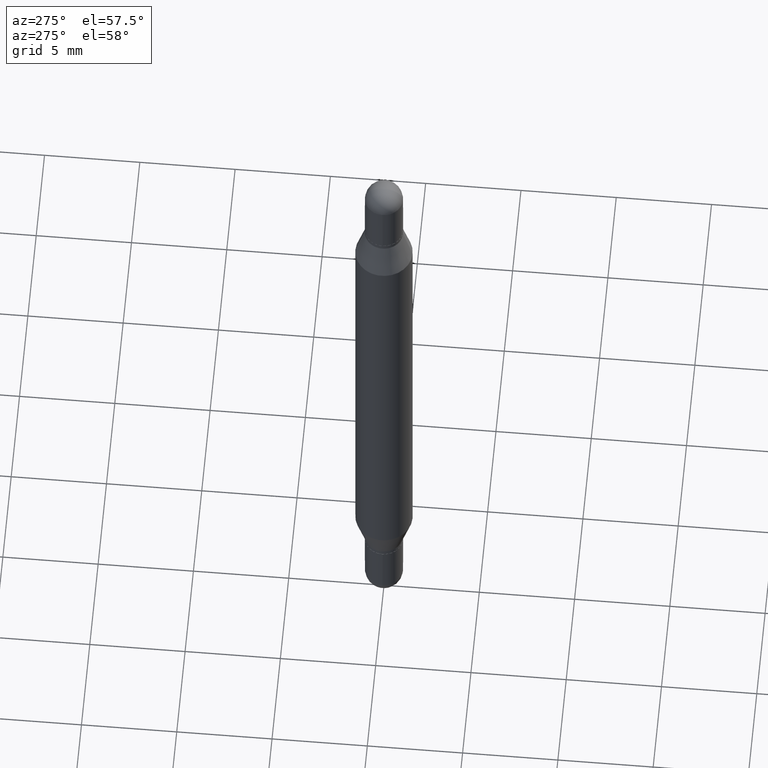
[diagram: clean part render]
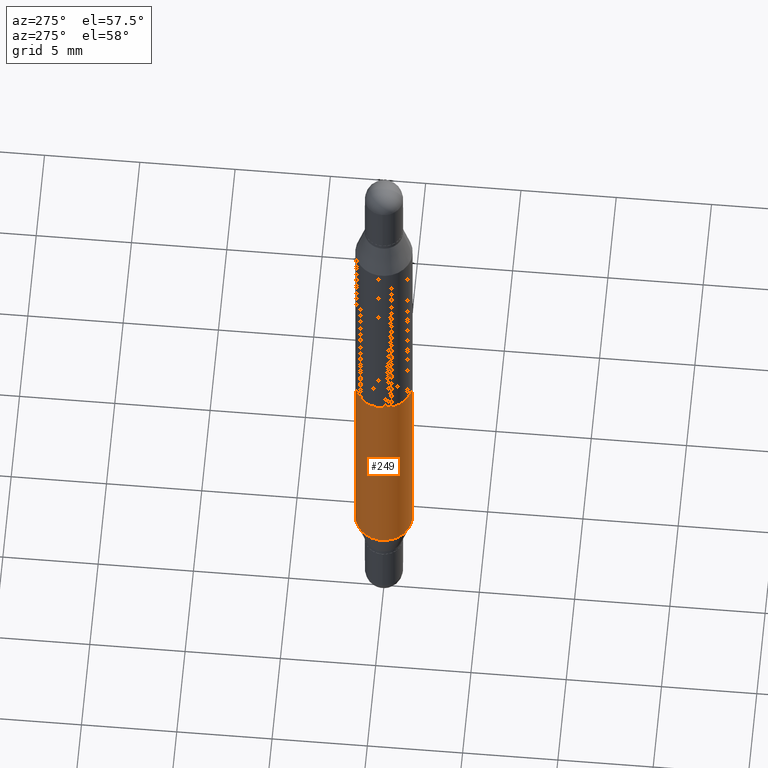
[diagram: same view with one face highlighted and labeled with its STEP entity id]
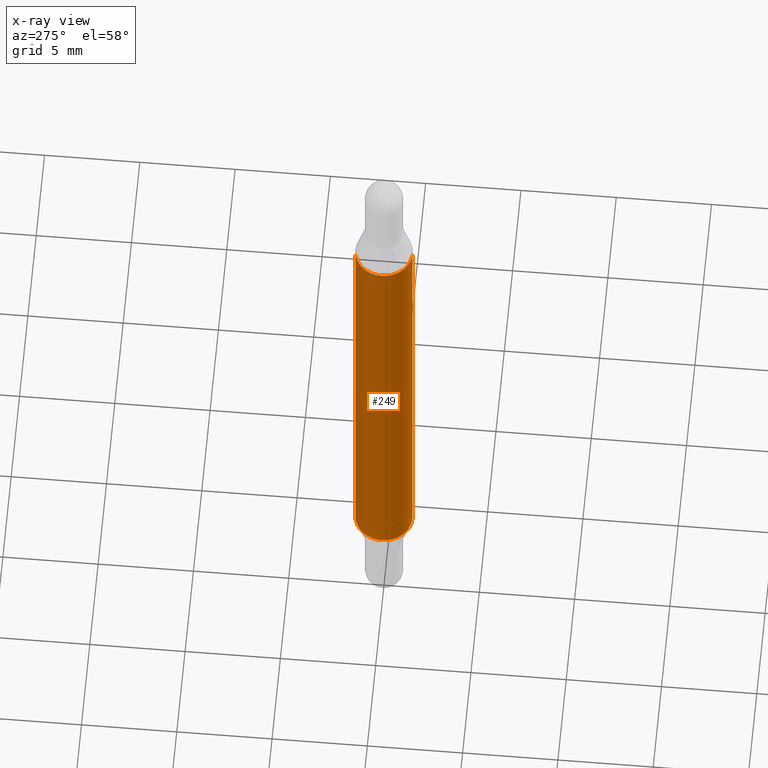
[diagram: x-ray of the same camera — body ghosted, the highlighted face saturated]
A machine part, auxiliary view. The second image highlights one B-rep face of the part: STEP entity #249.
The next image is the same camera in x-ray: the body ghosted, the highlighted face saturated — about 0% of this face is hidden behind the body in this view.
In plain terms, the highlighted cylindrical surface (edge-blend (fillet) strip) has radius 1.4999 mm, axis along (-0, -0, -1).
Its self-contained STEP definition (entity closure, byte-faithful):
#45 = LINE ( 'NONE', #901, #1027 ) ;
#102 = DIRECTION ( 'NONE',  ( -6.982962677686265922E-15, -1.000000000000000000, 3.469747663417777397E-15 ) ) ;
#104 = CYLINDRICAL_SURFACE ( 'NONE', #886, 0.05905000000000000526 ) ;
#114 = EDGE_CURVE ( 'NONE', #730, #723, #727, .T. ) ;
#147 = AXIS2_PLACEMENT_3D ( 'NONE', #288, #539, #867 ) ;
#178 = CARTESIAN_POINT ( 'NONE',  ( 4.051124067684272093E-16, 0.05904999999999561988, -1.254578599090893309 ) ) ;
#188 = EDGE_CURVE ( 'NONE', #858, #723, #284, .T. ) ;
#249 = ADVANCED_FACE ( 'NONE', ( #705 ), #104, .T. ) ;
#264 = CIRCLE ( 'NONE', #1045, 0.05904999999999999832 ) ;
#284 = CIRCLE ( 'NONE', #147, 0.05904999999999999832 ) ;
#288 = CARTESIAN_POINT ( 'NONE',  ( 3.068521513334213693E-29, -4.379637943034464586E-15, -1.254578599090893087 ) ) ;
#360 = DIRECTION ( 'NONE',  ( -2.445858326897780646E-29, -3.480172282808476455E-15, -1.000000000000000000 ) ) ;
#365 = CARTESIAN_POINT ( 'NONE',  ( 3.068521513334213693E-29, -8.485785503835664972E-16, -0.2415214009091068426 ) ) ;
#460 = VECTOR ( 'NONE', #912, 39.37007874015748143 ) ;
#520 = EDGE_LOOP ( 'NONE', ( #827, #535, #992, #799 ) ) ;
#523 = CARTESIAN_POINT ( 'NONE',  ( 0.000000000000000000, -5.214728217544379106E-15, -1.496099999999999985 ) ) ;
#535 = ORIENTED_EDGE ( 'NONE', *, *, #1084, .T. ) ;
#539 = DIRECTION ( 'NONE',  ( -2.445858326897780646E-29, 3.490923523012497382E-15, 1.000000000000000000 ) ) ;
#600 = CARTESIAN_POINT ( 'NONE',  ( -4.123439461173433164E-16, -0.05905000000000437677, -1.254578599090892865 ) ) ;
#699 = DIRECTION ( 'NONE',  ( -6.982962677686265922E-15, -1.000000000000000000, 4.626330217890369336E-15 ) ) ;
#705 = FACE_OUTER_BOUND ( 'NONE', #520, .T. ) ;
#723 = VERTEX_POINT ( 'NONE', #600 ) ;
#727 = LINE ( 'NONE', #1078, #460 ) ;
#730 = VERTEX_POINT ( 'NONE', #1071 ) ;
#764 = CARTESIAN_POINT ( 'NONE',  ( 4.051124067684395845E-16, 0.05904999999999915178, -0.2415214009091070368 ) ) ;
#799 = ORIENTED_EDGE ( 'NONE', *, *, #114, .F. ) ;
#827 = ORIENTED_EDGE ( 'NONE', *, *, #1032, .F. ) ;
#858 = VERTEX_POINT ( 'NONE', #178 ) ;
#867 = DIRECTION ( 'NONE',  ( -6.982962677686265922E-15, -1.000000000000000000, 4.626330217890369336E-15 ) ) ;
#874 = DIRECTION ( 'NONE',  ( 2.445858326897780646E-29, 3.480172282808476455E-15, 1.000000000000000000 ) ) ;
#886 = AXIS2_PLACEMENT_3D ( 'NONE', #523, #360, #699 ) ;
#901 = CARTESIAN_POINT ( 'NONE',  ( 4.051124067684089175E-16, 0.05904999999999479415, -1.496100000000000207 ) ) ;
#912 = DIRECTION ( 'NONE',  ( -2.445858326897780926E-29, -3.480172282808476849E-15, -1.000000000000000000 ) ) ;
#992 = ORIENTED_EDGE ( 'NONE', *, *, #188, .T. ) ;
#993 = DIRECTION ( 'NONE',  ( -2.445858326897780926E-29, -3.480172282808476849E-15, -1.000000000000000000 ) ) ;
#1027 = VECTOR ( 'NONE', #993, 39.37007874015748143 ) ;
#1032 = EDGE_CURVE ( 'NONE', #1096, #730, #264, .T. ) ;
#1045 = AXIS2_PLACEMENT_3D ( 'NONE', #365, #874, #102 ) ;
#1071 = CARTESIAN_POINT ( 'NONE',  ( -4.123439461173433657E-16, -0.05905000000000084487, -0.2415214009091066205 ) ) ;
#1078 = CARTESIAN_POINT ( 'NONE',  ( -4.123439461173740327E-16, -0.05905000000000522331, -1.496099999999999541 ) ) ;
#1084 = EDGE_CURVE ( 'NONE', #1096, #858, #45, .T. ) ;
#1096 = VERTEX_POINT ( 'NONE', #764 ) ;